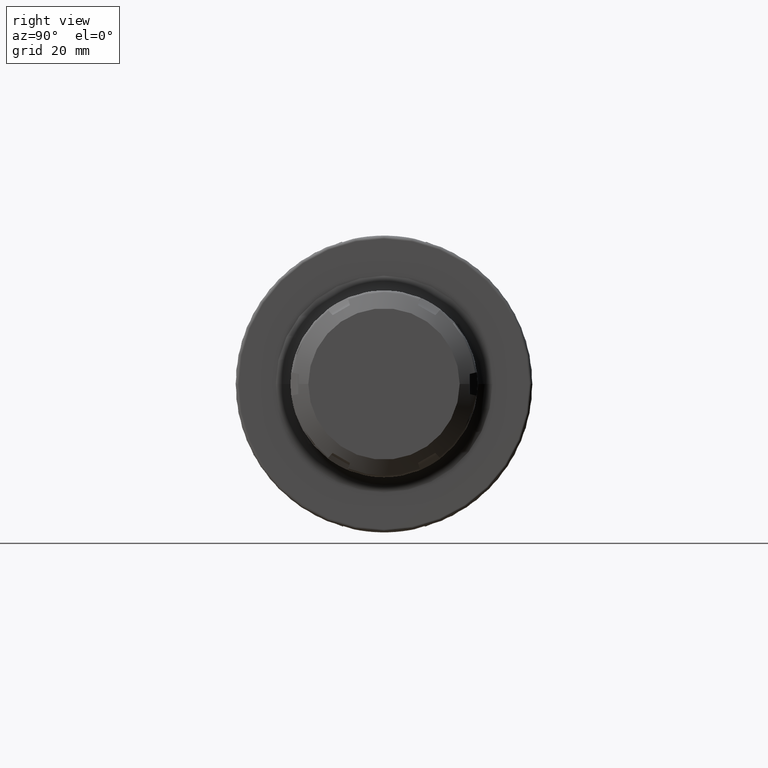
[diagram: clean part render]
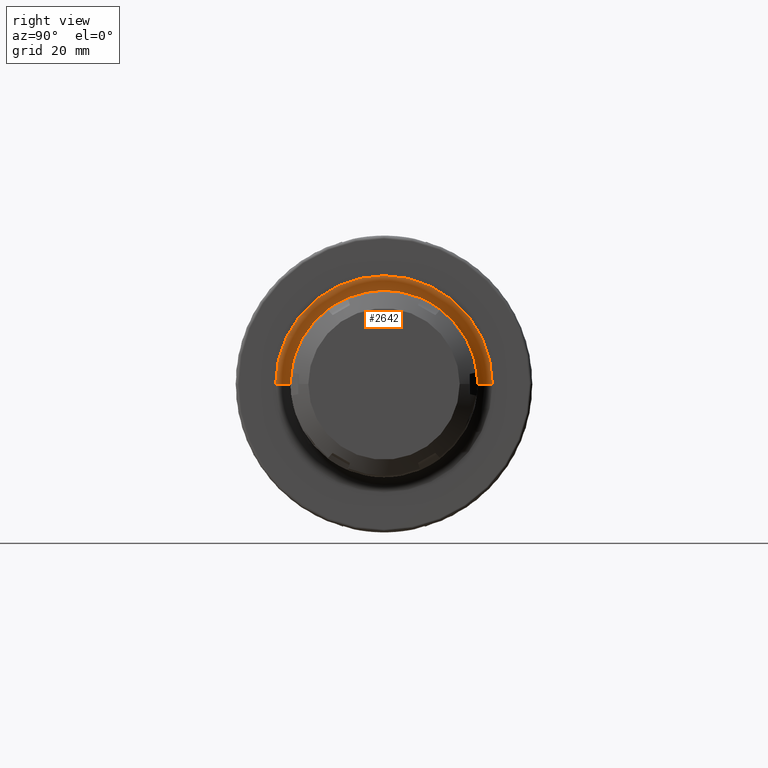
[diagram: same view with one face highlighted and labeled with its STEP entity id]
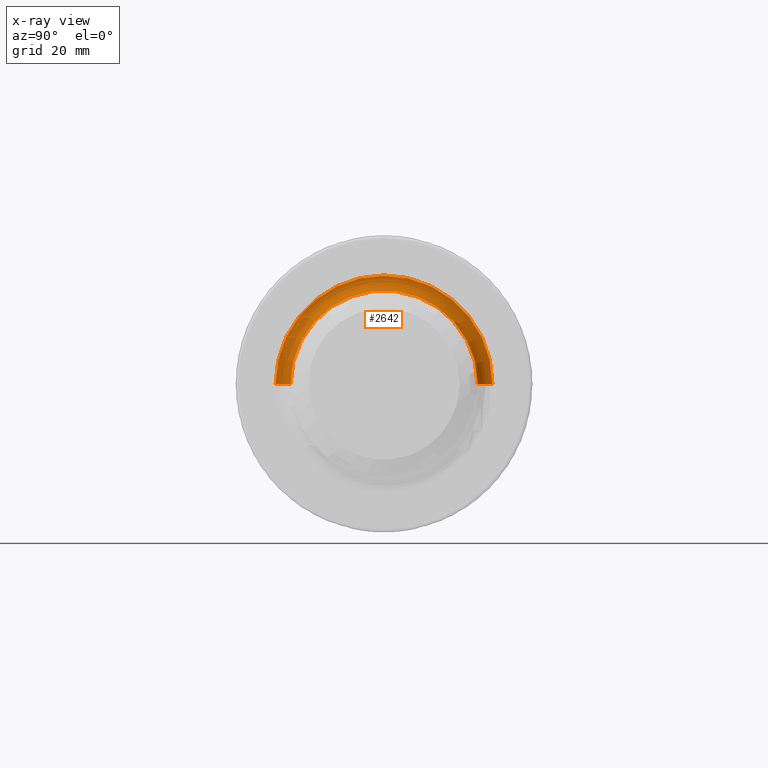
[diagram: x-ray of the same camera — body ghosted, the highlighted face saturated]
A machine part, right view. The second image highlights one B-rep face of the part: STEP entity #2642.
The next image is the same camera in x-ray: the body ghosted, the highlighted face saturated — about 2% of this face is hidden behind the body in this view.
In plain terms, the highlighted toroidal blend (fillet) surface has major radius 36.5 mm and minor (blend) radius 5 mm.
Its self-contained STEP definition (entity closure, byte-faithful):
#839=CARTESIAN_POINT('',(3.8E1,0.E0,0.E0));
#840=DIRECTION('',(1.E0,0.E0,0.E0));
#841=DIRECTION('',(0.E0,1.E0,0.E0));
#842=AXIS2_PLACEMENT_3D('',#839,#840,#841);
#844=CARTESIAN_POINT('',(4.3E1,-3.65E1,7.459310946700E-13));
#845=DIRECTION('',(0.E0,-2.043764463222E-14,-1.E0));
#846=DIRECTION('',(-1.E0,2.273736754432E-14,0.E0));
#847=AXIS2_PLACEMENT_3D('',#844,#845,#846);
#849=CARTESIAN_POINT('',(4.3E1,3.65E1,-7.508438315540E-13));
#850=DIRECTION('',(0.E0,2.057208570161E-14,1.E0));
#851=DIRECTION('',(-1.E0,-2.415845301584E-14,0.E0));
#852=AXIS2_PLACEMENT_3D('',#849,#850,#851);
#859=CARTESIAN_POINT('',(4.3E1,0.E0,0.E0));
#860=DIRECTION('',(1.E0,0.E0,0.E0));
#861=DIRECTION('',(0.E0,1.E0,0.E0));
#862=AXIS2_PLACEMENT_3D('',#859,#860,#861);
#1463=CARTESIAN_POINT('',(3.8E1,-3.65E1,0.E0));
#1464=CARTESIAN_POINT('',(3.8E1,3.65E1,0.E0));
#1465=VERTEX_POINT('',#1463);
#1466=VERTEX_POINT('',#1464);
#1467=CARTESIAN_POINT('',(4.3E1,-3.15E1,0.E0));
#1468=CARTESIAN_POINT('',(4.3E1,3.15E1,0.E0));
#1469=VERTEX_POINT('',#1467);
#1470=VERTEX_POINT('',#1468);
#2630=CARTESIAN_POINT('',(4.3E1,0.E0,0.E0));
#2631=DIRECTION('',(1.E0,0.E0,0.E0));
#2632=DIRECTION('',(0.E0,9.999880853863E-1,-4.881504422352E-3));
#2633=AXIS2_PLACEMENT_3D('',#2630,#2631,#2632);
#2634=TOROIDAL_SURFACE('',#2633,3.65E1,5.E0);
#2635=ORIENTED_EDGE('',*,*,#2610,.F.);
#2636=ORIENTED_EDGE('',*,*,#2625,.T.);
#2638=ORIENTED_EDGE('',*,*,#2637,.T.);
#2639=ORIENTED_EDGE('',*,*,#2621,.F.);
#2640=EDGE_LOOP('',(#2635,#2636,#2638,#2639));
#2641=FACE_OUTER_BOUND('',#2640,.F.);
#2642=ADVANCED_FACE('',(#2641),#2634,.F.);
#843=CIRCLE('',#842,3.65E1);
#848=CIRCLE('',#847,5.E0);
#853=CIRCLE('',#852,5.E0);
#863=CIRCLE('',#862,3.15E1);
#2610=EDGE_CURVE('',#1466,#1465,#843,.T.);
#2621=EDGE_CURVE('',#1465,#1469,#848,.T.);
#2625=EDGE_CURVE('',#1466,#1470,#853,.T.);
#2637=EDGE_CURVE('',#1470,#1469,#863,.T.);